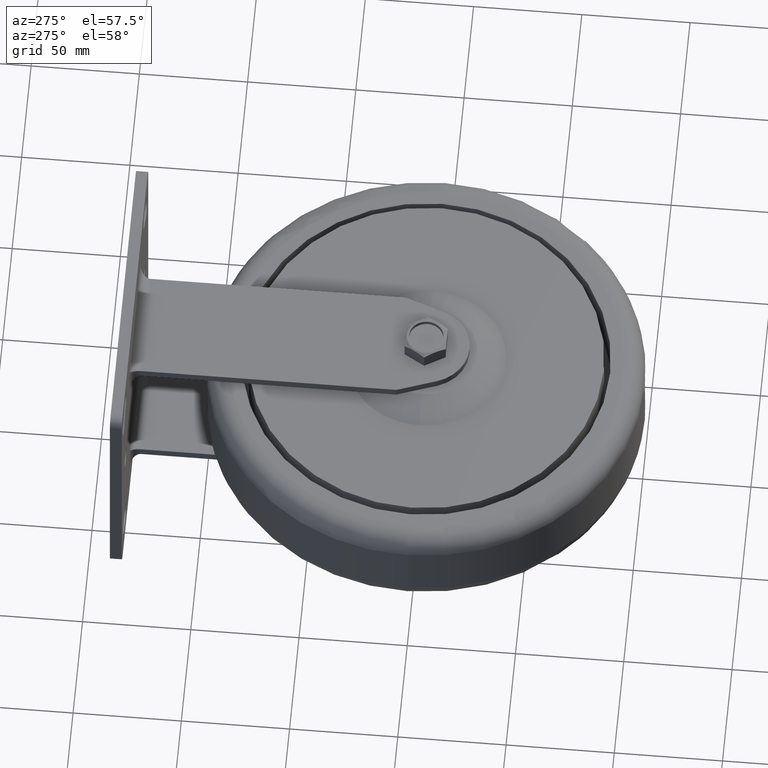
[diagram: clean part render]
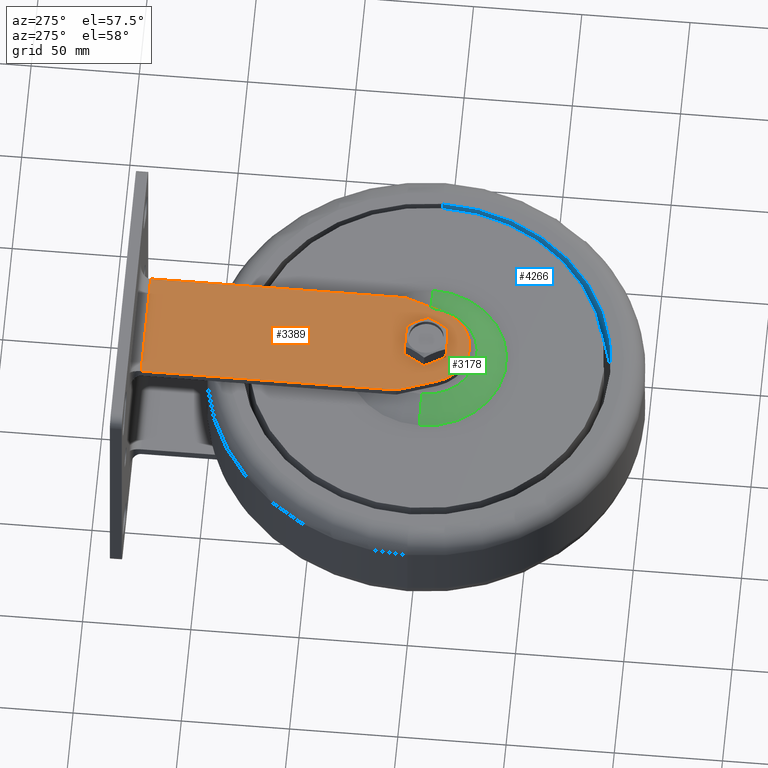
[diagram: same view with three faces highlighted in distinct colors, each labeled with its STEP entity id]
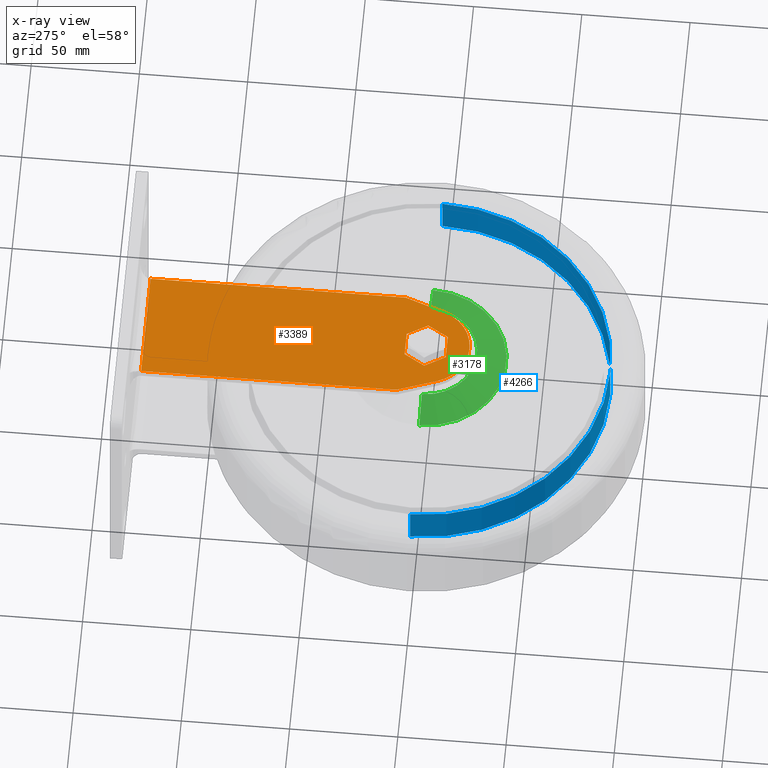
[diagram: x-ray of the same camera — body ghosted, the three highlighted faces saturated]
A machine part, auxiliary view with three faces highlighted in distinct colors.
The next image is the same camera in x-ray (body ghosted, the three faces saturated) — at least one of them is partly hidden behind the body in this view.
Their STEP definitions:

[orange] entity #3389 — the highlighted face is a freeform B-spline surface patch.
#13 = VERTEX_POINT ( 'NONE', #4254 ) ;
#72 = CARTESIAN_POINT ( 'NONE',  ( -9.141379262333334310, -3.166666666666664298, 35.50000000000000711 ) ) ;
#101 = CARTESIAN_POINT ( 'NONE',  ( -5.484827562499999587, -9.499999985220330956, 35.50000000000000000 ) ) ;
#138 = CARTESIAN_POINT ( 'NONE',  ( 18.88186011547804810, -6.593584645907282216, 35.50000000000000000 ) ) ;
#147 = CARTESIAN_POINT ( 'NONE',  ( -1.031108389915398993, -20.00000257770694745, 35.50000000000000711 ) ) ;
#166 = CARTESIAN_POINT ( 'NONE',  ( -18.88186011598494929, -6.593584644455773081, 35.50000000000000000 ) ) ;
#176 = CARTESIAN_POINT ( 'NONE',  ( 18.88186011547804810, -6.593584645907282216, 35.50000000000000000 ) ) ;
#264 = VERTEX_POINT ( 'NONE', #1628 ) ;
#319 = VERTEX_POINT ( 'NONE', #3384 ) ;
#352 = CARTESIAN_POINT ( 'NONE',  ( -25.25000000000000000, 129.5000000000000000, 35.50000000000000000 ) ) ;
#361 = CARTESIAN_POINT ( 'NONE',  ( -25.25000000000000000, 11.64267573216165630, 35.50000000000000000 ) ) ;
#455 = CARTESIAN_POINT ( 'NONE',  ( 75.75000000000000000, -118.9819999999999993, 35.50000000000000000 ) ) ;
#482 = ORIENTED_EDGE ( 'NONE', *, *, #4928, .T. ) ;
#495 = CARTESIAN_POINT ( 'NONE',  ( -5.094196442065094033, -19.36781464202947589, 35.50000000000000711 ) ) ;
#523 = CARTESIAN_POINT ( 'NONE',  ( 5.094198004033266614, -19.36781955489585982, 35.49999999999998579 ) ) ;
#601 = VERTEX_POINT ( 'NONE', #2923 ) ;
#658 = CARTESIAN_POINT ( 'NONE',  ( 23.12728670666666630, 5.563922287666662747, 35.50000000000000000 ) ) ;
#669 = CARTESIAN_POINT ( 'NONE',  ( -5.484827562499999587, 9.500000000200333972, 35.50000000000000000 ) ) ;
#739 = CARTESIAN_POINT ( 'NONE',  ( 25.25000000000000000, 11.64267573216165630, 35.50000000000000000 ) ) ;
#786 = B_SPLINE_SURFACE_WITH_KNOTS ( 'NONE', 1, 1, ( 
 ( #3008, #4680, #853, #4603 ),
 ( #4212, #3346, #352, #1696 ),
 ( #2503, #1266, #2060, #1212 ),
 ( #455, #4628, #4708, #3819 ) ),
 .UNSPECIFIED., .F., .F., .F.,
 ( 2, 1, 1, 2 ),
 ( 2, 1, 1, 2 ),
 ( -1.000000000000000000, 0.000000000000000000, 1.000000000000000000, 2.000000000000000000 ),
 ( -1.000000000000000000, 0.000000000000000000, 1.000000000000000000, 2.000000000000000000 ),
 .UNSPECIFIED. ) ;
#811 = B_SPLINE_CURVE_WITH_KNOTS ( 'NONE', 3,
 ( #3321, #3343, #2419, #4991 ),
 .UNSPECIFIED., .F., .F.,
 ( 4, 4 ),
 ( 0.000000000000000000, 1.000000000000000000 ),
 .UNSPECIFIED. ) ;
#812 = ORIENTED_EDGE ( 'NONE', *, *, #1957, .T. ) ;
#841 = CARTESIAN_POINT ( 'NONE',  ( 5.484827562499999587, -9.499999985220330956, 35.50000000000000000 ) ) ;
#853 = CARTESIAN_POINT ( 'NONE',  ( -75.75000000000000000, 129.5000000000000000, 35.50000000000000000 ) ) ;
#868 = CARTESIAN_POINT ( 'NONE',  ( -25.25000000041100279, 129.4999999994871871, 35.49999999991200639 ) ) ;
#931 = ORIENTED_EDGE ( 'NONE', *, *, #2016, .T. ) ;
#961 = EDGE_CURVE ( 'NONE', #1913, #4711, #1892, .T. ) ;
#971 = CARTESIAN_POINT ( 'NONE',  ( 25.25000000000000000, 11.64267573216165630, 35.50000000000000000 ) ) ;
#980 = CARTESIAN_POINT ( 'NONE',  ( 14.68707180070016349, -13.61444098438989592, 35.50000000000000711 ) ) ;
#1038 = CARTESIAN_POINT ( 'NONE',  ( 18.54194161162936894, -7.566999568024280087, 35.49999999999999289 ) ) ;
#1054 = CARTESIAN_POINT ( 'NONE',  ( 7.313103409666669386, 6.333333333333329485, 35.50000000000000000 ) ) ;
#1075 = CARTESIAN_POINT ( 'NONE',  ( 5.484827562499999587, -9.499999985220330956, 35.50000000000000000 ) ) ;
#1212 = CARTESIAN_POINT ( 'NONE',  ( 25.25000000000000000, 253.7409999999999854, 35.50000000000000000 ) ) ;
#1231 = ORIENTED_EDGE ( 'NONE', *, *, #5322, .T. ) ;
#1266 = CARTESIAN_POINT ( 'NONE',  ( 25.25000000000000000, 5.258999999999999453, 35.50000000000000000 ) ) ;
#1292 = FACE_BOUND ( 'NONE', #5483, .T. ) ;
#1334 = CARTESIAN_POINT ( 'NONE',  ( 15.36631089000185035, -12.84288819737673037, 35.49999999999998579 ) ) ;
#1361 = CARTESIAN_POINT ( 'NONE',  ( -18.12922215934005976, -8.508501131876297308, 35.50000000000000000 ) ) ;
#1392 = CARTESIAN_POINT ( 'NONE',  ( 2.055988363454142487, -19.92074796444742546, 35.50000000000000000 ) ) ;
#1414 = CARTESIAN_POINT ( 'NONE',  ( -18.88186011598494929, -6.593584644455773081, 35.50000000000000000 ) ) ;
#1418 = CARTESIAN_POINT ( 'NONE',  ( 17.15811913586930260, -10.32773938308898742, 35.50000000000000000 ) ) ;
#1449 = CARTESIAN_POINT ( 'NONE',  ( 10.73786703012824617, -16.90448163253673641, 35.50000000000000000 ) ) ;
#1567 = B_SPLINE_CURVE_WITH_KNOTS ( 'NONE', 3,
 ( #3257, #2362, #5320, #1075 ),
 .UNSPECIFIED., .F., .F.,
 ( 4, 4 ),
 ( 0.000000000000000000, 1.000000000000000000 ),
 .UNSPECIFIED. ) ;
#1576 = CARTESIAN_POINT ( 'NONE',  ( -5.484827562499999587, 9.500000000200333972, 35.50000000000000000 ) ) ;
#1628 = CARTESIAN_POINT ( 'NONE',  ( 25.25000000000000000, 11.64267573216165630, 35.50000000000000000 ) ) ;
#1696 = CARTESIAN_POINT ( 'NONE',  ( -25.25000000000000000, 253.7409999999999854, 35.50000000000000000 ) ) ;
#1720 = EDGE_CURVE ( 'NONE', #4359, #3113, #3286, .T. ) ;
#1753 = VERTEX_POINT ( 'NONE', #166 ) ;
#1764 = CARTESIAN_POINT ( 'NONE',  ( 4.093686739675617581, -19.60369379158431613, 35.50000000000000711 ) ) ;
#1792 = CARTESIAN_POINT ( 'NONE',  ( -4.093687538589860786, -19.60369888463764809, 35.50000000000000000 ) ) ;
#1821 = CARTESIAN_POINT ( 'NONE',  ( -9.856320592448303941, -17.43319339647038291, 35.50000000000000000 ) ) ;
#1841 = CARTESIAN_POINT ( 'NONE',  ( 10.96965510883334005, 7.489994735543348270E-09, 35.50000000000000000 ) ) ;
#1880 = CARTESIAN_POINT ( 'NONE',  ( -10.73786404911542469, -16.90447742636406048, 35.50000000000000000 ) ) ;
#1892 = B_SPLINE_CURVE_WITH_KNOTS ( 'NONE', 1,
 ( #669, #5251 ),
 .UNSPECIFIED., .F., .F.,
 ( 2, 2 ),
 ( 0.000000000000000000, 1.000000000000000000 ),
 .UNSPECIFIED. ) ;
#1899 = ORIENTED_EDGE ( 'NONE', *, *, #961, .T. ) ;
#1904 = CARTESIAN_POINT ( 'NONE',  ( -21.00457341333333261, -0.5148311766666703315, 35.50000000000000000 ) ) ;
#1913 = VERTEX_POINT ( 'NONE', #1576 ) ;
#1957 = EDGE_CURVE ( 'NONE', #13, #5165, #4020, .T. ) ;
#2016 = EDGE_CURVE ( 'NONE', #2868, #4359, #3073, .T. ) ;
#2060 = CARTESIAN_POINT ( 'NONE',  ( 25.25000000000000000, 129.5000000000000000, 35.50000000000000000 ) ) ;
#2179 = CARTESIAN_POINT ( 'NONE',  ( -7.058927342726594389, -18.74126016006364637, 35.50000000000000000 ) ) ;
#2193 = CARTESIAN_POINT ( 'NONE',  ( -7.313103409666667609, -6.333333333333338366, 35.50000000000000000 ) ) ;
#2194 = CARTESIAN_POINT ( 'NONE',  ( -25.25000000041100279, 129.4999999994871871, 35.49999999991200639 ) ) ;
#2202 = CARTESIAN_POINT ( 'NONE',  ( -25.25000000000000000, 11.64267573216165630, 35.50000000000000000 ) ) ;
#2206 = B_SPLINE_CURVE_WITH_KNOTS ( 'NONE', 1,
 ( #739, #3738 ),
 .UNSPECIFIED., .F., .F.,
 ( 2, 2 ),
 ( -0.2830476519573108529, 1.000000000000000222 ),
 .UNSPECIFIED. ) ;
#2214 = CARTESIAN_POINT ( 'NONE',  ( 5.484827562499999587, 9.500000000200333972, 35.50000000000000000 ) ) ;
#2228 = B_SPLINE_CURVE_WITH_KNOTS ( 'NONE', 3,
 ( #2202, #3100, #1904, #1414 ),
 .UNSPECIFIED., .F., .F.,
 ( 4, 4 ),
 ( 0.000000000000000000, 1.000000000000000000 ),
 .UNSPECIFIED. ) ;
#2255 = CARTESIAN_POINT ( 'NONE',  ( -25.25000000000000000, 11.64267573216165630, 35.50000000000000000 ) ) ;
#2283 = CARTESIAN_POINT ( 'NONE',  ( -10.96965510883334005, 7.489994735543348270E-09, 35.50000000000000000 ) ) ;
#2286 = ORIENTED_EDGE ( 'NONE', *, *, #3533, .T. ) ;
#2342 = EDGE_LOOP ( 'NONE', ( #1231, #931, #3096, #4379, #482, #2919 ) ) ;
#2362 = CARTESIAN_POINT ( 'NONE',  ( 9.141379262333336086, -3.166666666666664298, 35.50000000000000000 ) ) ;
#2419 = CARTESIAN_POINT ( 'NONE',  ( -7.313103409666667609, 6.333333333333329485, 35.50000000000000000 ) ) ;
#2503 = CARTESIAN_POINT ( 'NONE',  ( 25.25000000000000000, -118.9819999999999993, 35.50000000000000000 ) ) ;
#2651 = CARTESIAN_POINT ( 'NONE',  ( 7.058925771969651208, -18.74125525000004444, 35.50000000000000000 ) ) ;
#2684 = CARTESIAN_POINT ( 'NONE',  ( 16.60556756960620461, -11.19456149605063189, 35.49999999999999289 ) ) ;
#2730 = CARTESIAN_POINT ( 'NONE',  ( 5.484827562499999587, 9.500000000200333972, 35.50000000000000000 ) ) ;
#2738 = CARTESIAN_POINT ( 'NONE',  ( -12.41935111680984960, -15.71060168988279848, 35.50000000000000000 ) ) ;
#2807 = CARTESIAN_POINT ( 'NONE',  ( -25.25000000041100279, 129.4999999994871871, 35.49999999991200639 ) ) ;
#2831 = EDGE_CURVE ( 'NONE', #601, #13, #1567, .T. ) ;
#2868 = VERTEX_POINT ( 'NONE', #5455 ) ;
#2919 = ORIENTED_EDGE ( 'NONE', *, *, #4176, .T. ) ;
#2923 = CARTESIAN_POINT ( 'NONE',  ( 10.96965510883334005, 7.489994735543348270E-09, 35.50000000000000000 ) ) ;
#2994 = CARTESIAN_POINT ( 'NONE',  ( -5.484827562499999587, -9.499999985220330956, 35.50000000000000000 ) ) ;
#3008 = CARTESIAN_POINT ( 'NONE',  ( -75.75000000000000000, -118.9819999999999993, 35.50000000000000000 ) ) ;
#3073 = B_SPLINE_CURVE_WITH_KNOTS ( 'NONE', 1,
 ( #4696, #868 ),
 .UNSPECIFIED., .F., .F.,
 ( 2, 2 ),
 ( 0.000000000000000000, 0.05050000000000000322 ),
 .UNSPECIFIED. ) ;
#3074 = CARTESIAN_POINT ( 'NONE',  ( -2.055987573655052802, -19.92074286997587151, 35.50000000000000711 ) ) ;
#3096 = ORIENTED_EDGE ( 'NONE', *, *, #1720, .T. ) ;
#3100 = CARTESIAN_POINT ( 'NONE',  ( -23.12728670666666630, 5.563922287666662747, 35.50000000000000000 ) ) ;
#3104 = CARTESIAN_POINT ( 'NONE',  ( -14.68707540023536851, -13.61444467514115786, 35.50000000000000000 ) ) ;
#3113 = VERTEX_POINT ( 'NONE', #361 ) ;
#3163 = CARTESIAN_POINT ( 'NONE',  ( 18.12920971455542585, -8.508513498043807743, 35.50000000000000000 ) ) ;
#3223 = EDGE_CURVE ( 'NONE', #3113, #1753, #2228, .T. ) ;
#3257 = CARTESIAN_POINT ( 'NONE',  ( 10.96965510883334005, 7.489994735543348270E-09, 35.50000000000000000 ) ) ;
#3286 = B_SPLINE_CURVE_WITH_KNOTS ( 'NONE', 1,
 ( #2194, #2255 ),
 .UNSPECIFIED., .F., .F.,
 ( 2, 2 ),
 ( 5.582700968176368406E-12, 1.283047651957310853 ),
 .UNSPECIFIED. ) ;
#3321 = CARTESIAN_POINT ( 'NONE',  ( -10.96965510883334005, 7.489994735543348270E-09, 35.50000000000000000 ) ) ;
#3343 = CARTESIAN_POINT ( 'NONE',  ( -9.141379262333334310, 3.166666666666666075, 35.50000000000000711 ) ) ;
#3346 = CARTESIAN_POINT ( 'NONE',  ( -25.25000000000000000, 5.258999999999999453, 35.50000000000000000 ) ) ;
#3384 = CARTESIAN_POINT ( 'NONE',  ( -10.96965510883334005, 7.489994735543348270E-09, 35.50000000000000000 ) ) ;
#3389 = ADVANCED_FACE ( 'NONE', ( #1292, #5047 ), #786, .T. ) ;
#3495 = CARTESIAN_POINT ( 'NONE',  ( -18.88186011598494929, -6.593584644455773081, 35.50000000000000000 ) ) ;
#3533 = EDGE_CURVE ( 'NONE', #5165, #319, #4296, .T. ) ;
#3548 = CARTESIAN_POINT ( 'NONE',  ( 9.141379262333336086, 3.166666666666666075, 35.50000000000000000 ) ) ;
#3556 = CARTESIAN_POINT ( 'NONE',  ( -8.011275954167972557, -18.35436021714436094, 35.49999999999999289 ) ) ;
#3584 = CARTESIAN_POINT ( 'NONE',  ( -13.20912815520272865, -15.05264145501102213, 35.50000000000001421 ) ) ;
#3738 = CARTESIAN_POINT ( 'NONE',  ( 25.25000000041100279, 129.5000000000000000, 35.49999999991200639 ) ) ;
#3819 = CARTESIAN_POINT ( 'NONE',  ( 75.75000000000000000, 253.7409999999999854, 35.50000000000000000 ) ) ;
#3909 = ORIENTED_EDGE ( 'NONE', *, *, #2831, .T. ) ;
#3910 = CARTESIAN_POINT ( 'NONE',  ( -15.36630677208501616, -12.84288509582245474, 35.50000000000000711 ) ) ;
#4020 = B_SPLINE_CURVE_WITH_KNOTS ( 'NONE', 1,
 ( #841, #2994 ),
 .UNSPECIFIED., .F., .F.,
 ( 2, 2 ),
 ( 0.000000000000000000, 1.000000000000000000 ),
 .UNSPECIFIED. ) ;
#4024 = CARTESIAN_POINT ( 'NONE',  ( 21.00457341333333261, -0.5148311766666703315, 35.50000000000000000 ) ) ;
#4065 = VERTEX_POINT ( 'NONE', #138 ) ;
#4114 = EDGE_CURVE ( 'NONE', #4711, #601, #5083, .T. ) ;
#4176 = EDGE_CURVE ( 'NONE', #4065, #264, #4675, .T. ) ;
#4212 = CARTESIAN_POINT ( 'NONE',  ( -25.25000000000000000, -118.9819999999999993, 35.50000000000000000 ) ) ;
#4254 = CARTESIAN_POINT ( 'NONE',  ( 5.484827562499999587, -9.499999985220330956, 35.50000000000000000 ) ) ;
#4275 = EDGE_CURVE ( 'NONE', #319, #1913, #811, .T. ) ;
#4296 = B_SPLINE_CURVE_WITH_KNOTS ( 'NONE', 3,
 ( #5210, #2193, #72, #2283 ),
 .UNSPECIFIED., .F., .F.,
 ( 4, 4 ),
 ( 0.000000000000000000, 1.000000000000000000 ),
 .UNSPECIFIED. ) ;
#4339 = B_SPLINE_CURVE_WITH_KNOTS ( 'NONE', 3,
 ( #3495, #5195, #1361, #4840, #4360, #3910, #3104, #3584, #2738, #1880, #1821, #3556, #2179, #495, #1792, #3074, #147, #4868, #1392, #1764, #523, #2651, #5280, #5250, #1449, #5168, #4808, #980, #1334, #2684, #1418, #3163, #1038, #176 ),
 .UNSPECIFIED., .F., .F.,
 ( 4, 2, 2, 2, 2, 2, 2, 2, 2, 2, 2, 2, 2, 2, 2, 2, 4 ),
 ( 0.000000000000000000, 0.06250000000000008327, 0.1250000000000001665, 0.1875000000000001943, 0.2500000000000002220, 0.3125000000000002220, 0.3750000000000002776, 0.4375000000000002776, 0.5000000000000003331, 0.5625000000000003331, 0.6250000000000002220, 0.6875000000000002220, 0.7500000000000002220, 0.8125000000000002220, 0.8750000000000001110, 0.9375000000000001110, 1.000000000000000000 ),
 .UNSPECIFIED. ) ;
#4359 = VERTEX_POINT ( 'NONE', #2807 ) ;
#4360 = CARTESIAN_POINT ( 'NONE',  ( -16.60557169306654757, -11.19456459023156469, 35.50000000000000000 ) ) ;
#4379 = ORIENTED_EDGE ( 'NONE', *, *, #3223, .T. ) ;
#4494 = ORIENTED_EDGE ( 'NONE', *, *, #4114, .T. ) ;
#4603 = CARTESIAN_POINT ( 'NONE',  ( -75.75000000000000000, 253.7409999999999854, 35.50000000000000000 ) ) ;
#4628 = CARTESIAN_POINT ( 'NONE',  ( 75.75000000000000000, 5.258999999999999453, 35.50000000000000000 ) ) ;
#4675 = B_SPLINE_CURVE_WITH_KNOTS ( 'NONE', 3,
 ( #5273, #4024, #658, #971 ),
 .UNSPECIFIED., .F., .F.,
 ( 4, 4 ),
 ( 0.000000000000000000, 1.000000000000000000 ),
 .UNSPECIFIED. ) ;
#4680 = CARTESIAN_POINT ( 'NONE',  ( -75.75000000000000000, 5.258999999999999453, 35.50000000000000000 ) ) ;
#4696 = CARTESIAN_POINT ( 'NONE',  ( 25.25000000041100279, 129.5000000000000000, 35.49999999991200639 ) ) ;
#4708 = CARTESIAN_POINT ( 'NONE',  ( 75.75000000000000000, 129.5000000000000000, 35.50000000000000000 ) ) ;
#4711 = VERTEX_POINT ( 'NONE', #2214 ) ;
#4808 = CARTESIAN_POINT ( 'NONE',  ( 13.20913174812670299, -15.05264515219573696, 35.50000000000000000 ) ) ;
#4840 = CARTESIAN_POINT ( 'NONE',  ( -17.15810669542868538, -10.32775174111850447, 35.50000000000000000 ) ) ;
#4868 = CARTESIAN_POINT ( 'NONE',  ( 1.031108385302987429, -19.99999742229305610, 35.50000000000001421 ) ) ;
#4928 = EDGE_CURVE ( 'NONE', #1753, #4065, #4339, .T. ) ;
#4991 = CARTESIAN_POINT ( 'NONE',  ( -5.484827562499999587, 9.500000000200333972, 35.50000000000000000 ) ) ;
#5047 = FACE_OUTER_BOUND ( 'NONE', #2342, .T. ) ;
#5083 = B_SPLINE_CURVE_WITH_KNOTS ( 'NONE', 3,
 ( #2730, #1054, #3548, #1841 ),
 .UNSPECIFIED., .F., .F.,
 ( 4, 4 ),
 ( 0.000000000000000000, 1.000000000000000000 ),
 .UNSPECIFIED. ) ;
#5165 = VERTEX_POINT ( 'NONE', #101 ) ;
#5168 = CARTESIAN_POINT ( 'NONE',  ( 12.41934812827532930, -15.71059748905064701, 35.50000000000000000 ) ) ;
#5195 = CARTESIAN_POINT ( 'NONE',  ( -18.54193055832568149, -7.567031221775762262, 35.49999999999999289 ) ) ;
#5210 = CARTESIAN_POINT ( 'NONE',  ( -5.484827562499999587, -9.499999985220330956, 35.50000000000000000 ) ) ;
#5250 = CARTESIAN_POINT ( 'NONE',  ( 9.856318286434252229, -17.43318878549325746, 35.50000000000000000 ) ) ;
#5251 = CARTESIAN_POINT ( 'NONE',  ( 5.484827562499999587, 9.500000000200333972, 35.50000000000000000 ) ) ;
#5273 = CARTESIAN_POINT ( 'NONE',  ( 18.88186011547804810, -6.593584645907282216, 35.50000000000000000 ) ) ;
#5280 = CARTESIAN_POINT ( 'NONE',  ( 8.011278251928672489, -18.35436483224210491, 35.50000000000000000 ) ) ;
#5320 = CARTESIAN_POINT ( 'NONE',  ( 7.313103409666669386, -6.333333333333338366, 35.50000000000000000 ) ) ;
#5322 = EDGE_CURVE ( 'NONE', #264, #2868, #2206, .T. ) ;
#5376 = ORIENTED_EDGE ( 'NONE', *, *, #4275, .T. ) ;
#5455 = CARTESIAN_POINT ( 'NONE',  ( 25.25000000041100279, 129.5000000000000000, 35.49999999991200639 ) ) ;
#5483 = EDGE_LOOP ( 'NONE', ( #5376, #1899, #4494, #3909, #812, #2286 ) ) ;

[blue] entity #4266 — the highlighted cylindrical surface (partial cylindrical patch) has radius 85 mm, axis along (0, 0, -1).
#249 = EDGE_CURVE ( 'NONE', #3404, #4133, #5447, .T. ) ;
#374 = CARTESIAN_POINT ( 'NONE',  ( 0.000000000000000000, 0.000000000000000000, 30.75500100071695186 ) ) ;
#375 = ORIENTED_EDGE ( 'NONE', *, *, #3419, .F. ) ;
#540 = CARTESIAN_POINT ( 'NONE',  ( 85.00000000000000000, 1.040949779275250179E-14, 4.999999999868279588 ) ) ;
#580 = DIRECTION ( 'NONE',  ( 0.000000000000000000, 0.000000000000000000, -1.000000000000000000 ) ) ;
#591 = VERTEX_POINT ( 'NONE', #4191 ) ;
#602 = CARTESIAN_POINT ( 'NONE',  ( -85.00000000000000000, 0.000000000000000000, 4.999999999868279588 ) ) ;
#879 = CARTESIAN_POINT ( 'NONE',  ( -85.00000000000000000, 0.000000000000000000, 24.00000000000000000 ) ) ;
#950 = VECTOR ( 'NONE', #4174, 1000.000000000000000 ) ;
#1023 = AXIS2_PLACEMENT_3D ( 'NONE', #3491, #580, #4745 ) ;
#1061 = DIRECTION ( 'NONE',  ( 0.000000000000000000, 0.000000000000000000, -1.000000000000000000 ) ) ;
#1445 = EDGE_CURVE ( 'NONE', #2628, #4133, #5298, .T. ) ;
#1639 = FACE_OUTER_BOUND ( 'NONE', #2070, .T. ) ;
#1685 = ORIENTED_EDGE ( 'NONE', *, *, #249, .F. ) ;
#1699 = ORIENTED_EDGE ( 'NONE', *, *, #5017, .T. ) ;
#2056 = AXIS2_PLACEMENT_3D ( 'NONE', #2559, #3324, #5101 ) ;
#2070 = EDGE_LOOP ( 'NONE', ( #375, #1699, #4227, #1685 ) ) ;
#2559 = CARTESIAN_POINT ( 'NONE',  ( 0.000000000000000000, 0.000000000000000000, 24.00000000000000000 ) ) ;
#2628 = VERTEX_POINT ( 'NONE', #540 ) ;
#2862 = DIRECTION ( 'NONE',  ( 0.000000000000000000, 0.000000000000000000, -1.000000000000000000 ) ) ;
#2914 = VECTOR ( 'NONE', #1061, 1000.000000000000000 ) ;
#3324 = DIRECTION ( 'NONE',  ( -0.000000000000000000, -0.000000000000000000, -1.000000000000000000 ) ) ;
#3404 = VERTEX_POINT ( 'NONE', #879 ) ;
#3419 = EDGE_CURVE ( 'NONE', #591, #3404, #4913, .T. ) ;
#3491 = CARTESIAN_POINT ( 'NONE',  ( 0.000000000000000000, 0.000000000000000000, 4.999999999868279588 ) ) ;
#3714 = CYLINDRICAL_SURFACE ( 'NONE', #4434, 85.00000000000000000 ) ;
#4133 = VERTEX_POINT ( 'NONE', #602 ) ;
#4174 = DIRECTION ( 'NONE',  ( 0.000000000000000000, 0.000000000000000000, -1.000000000000000000 ) ) ;
#4191 = CARTESIAN_POINT ( 'NONE',  ( 85.00000000000000000, 1.040949779275250179E-14, 24.00000000000000000 ) ) ;
#4227 = ORIENTED_EDGE ( 'NONE', *, *, #1445, .T. ) ;
#4266 = ADVANCED_FACE ( 'NONE', ( #1639 ), #3714, .F. ) ;
#4434 = AXIS2_PLACEMENT_3D ( 'NONE', #374, #2862, #4962 ) ;
#4745 = DIRECTION ( 'NONE',  ( -1.000000000000000000, 0.000000000000000000, 0.000000000000000000 ) ) ;
#4892 = CARTESIAN_POINT ( 'NONE',  ( 85.00000000000000000, 1.040949779275250179E-14, 30.75500100071695186 ) ) ;
#4913 = CIRCLE ( 'NONE', #2056, 85.00000000000000000 ) ;
#4923 = CARTESIAN_POINT ( 'NONE',  ( -85.00000000000000000, 0.000000000000000000, 30.75500100071695186 ) ) ;
#4962 = DIRECTION ( 'NONE',  ( -1.000000000000000000, 0.000000000000000000, 0.000000000000000000 ) ) ;
#5017 = EDGE_CURVE ( 'NONE', #591, #2628, #5387, .T. ) ;
#5101 = DIRECTION ( 'NONE',  ( 1.000000000000000000, 0.000000000000000000, 0.000000000000000000 ) ) ;
#5298 = CIRCLE ( 'NONE', #1023, 85.00000000000000000 ) ;
#5387 = LINE ( 'NONE', #4892, #2914 ) ;
#5447 = LINE ( 'NONE', #4923, #950 ) ;

[green] entity #3178 — the highlighted conical surface has half-angle 66.93 deg.
#36 = CIRCLE ( 'NONE', #4148, 37.00000000000000000 ) ;
#42 = CARTESIAN_POINT ( 'NONE',  ( -23.50000000000000000, 0.000000000000000000, 30.75000000000000000 ) ) ;
#171 = LINE ( 'NONE', #4442, #714 ) ;
#254 = EDGE_LOOP ( 'NONE', ( #1237, #4337, #1978, #5099 ) ) ;
#377 = DIRECTION ( 'NONE',  ( -0.9200239789895803266, 0.000000000000000000, -0.3918620651251921161 ) ) ;
#519 = CARTESIAN_POINT ( 'NONE',  ( 0.000000000000000000, 0.000000000000000000, 25.00000000000000000 ) ) ;
#604 = DIRECTION ( 'NONE',  ( 0.000000000000000000, 0.000000000000000000, -1.000000000000000000 ) ) ;
#634 = VERTEX_POINT ( 'NONE', #4847 ) ;
#714 = VECTOR ( 'NONE', #1785, 1000.000000000000114 ) ;
#805 = AXIS2_PLACEMENT_3D ( 'NONE', #519, #2320, #1474 ) ;
#991 = AXIS2_PLACEMENT_3D ( 'NONE', #4134, #604, #1056 ) ;
#1056 = DIRECTION ( 'NONE',  ( -1.000000000000000000, 0.000000000000000000, 0.000000000000000000 ) ) ;
#1237 = ORIENTED_EDGE ( 'NONE', *, *, #3283, .F. ) ;
#1474 = DIRECTION ( 'NONE',  ( -1.000000000000000000, 0.000000000000000000, 0.000000000000000000 ) ) ;
#1498 = EDGE_CURVE ( 'NONE', #1634, #3025, #36, .T. ) ;
#1634 = VERTEX_POINT ( 'NONE', #2983 ) ;
#1785 = DIRECTION ( 'NONE',  ( 0.9200239789895803266, 1.126704421008401131E-16, -0.3918620651251921161 ) ) ;
#1816 = FACE_OUTER_BOUND ( 'NONE', #254, .T. ) ;
#1978 = ORIENTED_EDGE ( 'NONE', *, *, #3432, .T. ) ;
#2320 = DIRECTION ( 'NONE',  ( 0.000000000000000000, 0.000000000000000000, -1.000000000000000000 ) ) ;
#2466 = EDGE_CURVE ( 'NONE', #634, #5201, #4287, .T. ) ;
#2582 = CARTESIAN_POINT ( 'NONE',  ( -37.00000000000000000, 0.000000000000000000, 25.00000000000000000 ) ) ;
#2983 = CARTESIAN_POINT ( 'NONE',  ( 37.00000000000000000, 4.531193156845206793E-15, 25.00000000000000000 ) ) ;
#3025 = VERTEX_POINT ( 'NONE', #3220 ) ;
#3131 = CARTESIAN_POINT ( 'NONE',  ( 0.000000000000000000, 0.000000000000000000, 25.00000000000000000 ) ) ;
#3178 = ADVANCED_FACE ( 'NONE', ( #1816 ), #4378, .T. ) ;
#3220 = CARTESIAN_POINT ( 'NONE',  ( -37.00000000000000000, 0.000000000000000000, 25.00000000000000000 ) ) ;
#3283 = EDGE_CURVE ( 'NONE', #634, #1634, #171, .T. ) ;
#3401 = LINE ( 'NONE', #2582, #5175 ) ;
#3432 = EDGE_CURVE ( 'NONE', #5201, #3025, #3401, .T. ) ;
#3997 = DIRECTION ( 'NONE',  ( -1.000000000000000000, 0.000000000000000000, 0.000000000000000000 ) ) ;
#4134 = CARTESIAN_POINT ( 'NONE',  ( 0.000000000000000000, 0.000000000000000000, 30.75000000000000000 ) ) ;
#4148 = AXIS2_PLACEMENT_3D ( 'NONE', #3131, #4416, #3997 ) ;
#4287 = CIRCLE ( 'NONE', #991, 23.50000000000000000 ) ;
#4337 = ORIENTED_EDGE ( 'NONE', *, *, #2466, .T. ) ;
#4378 = CONICAL_SURFACE ( 'NONE', #805, 37.00000000000000000, 1.168141673243023426 ) ;
#4416 = DIRECTION ( 'NONE',  ( 0.000000000000000000, 0.000000000000000000, -1.000000000000000000 ) ) ;
#4442 = CARTESIAN_POINT ( 'NONE',  ( 37.00000000000000000, 4.531193156845206793E-15, 25.00000000000000000 ) ) ;
#4847 = CARTESIAN_POINT ( 'NONE',  ( 23.50000000000000000, 3.704556567420743754E-15, 30.75000000000000000 ) ) ;
#5099 = ORIENTED_EDGE ( 'NONE', *, *, #1498, .F. ) ;
#5175 = VECTOR ( 'NONE', #377, 1000.000000000000114 ) ;
#5201 = VERTEX_POINT ( 'NONE', #42 ) ;